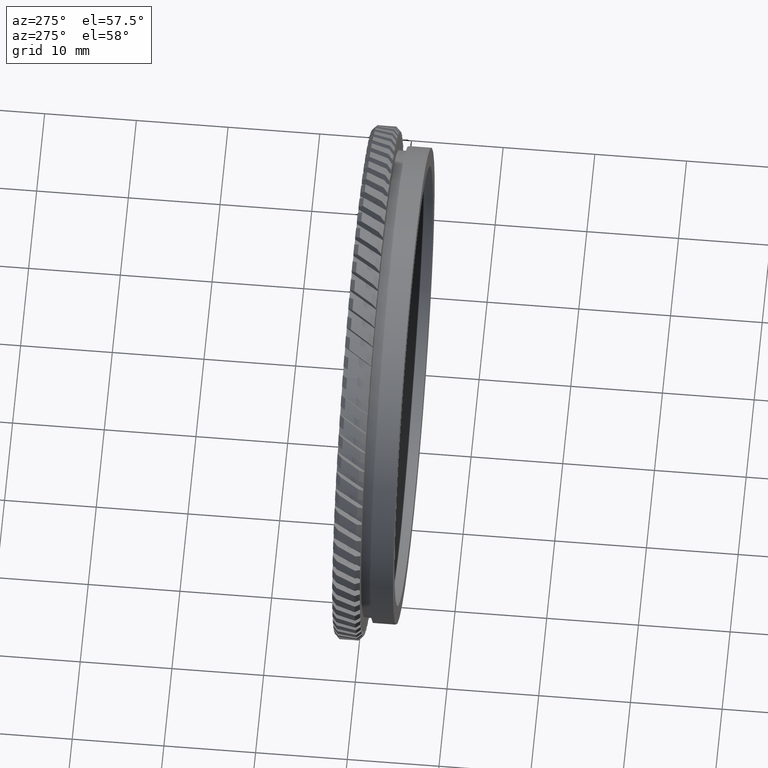
[diagram: clean part render]
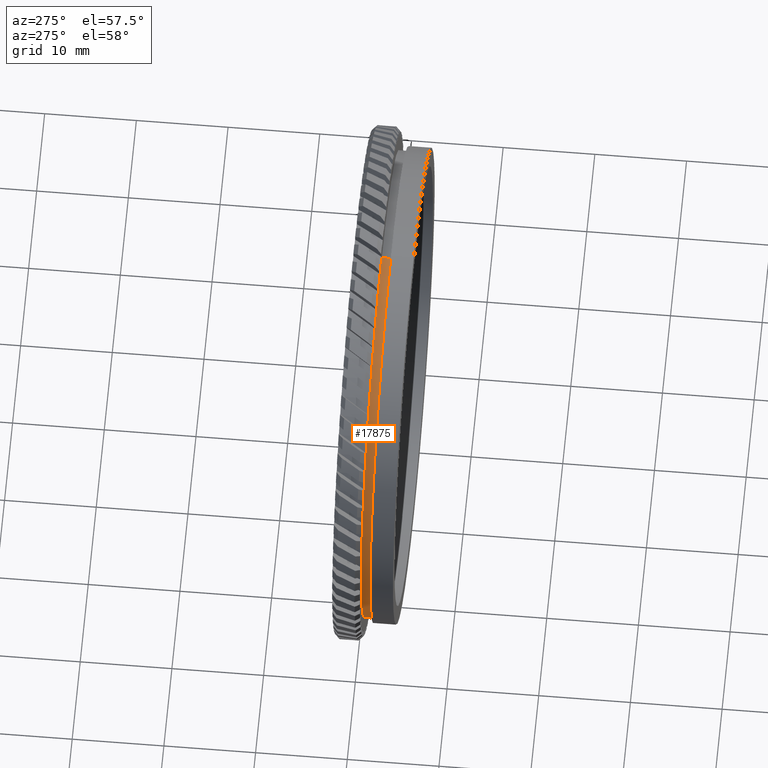
[diagram: same view with one face highlighted and labeled with its STEP entity id]
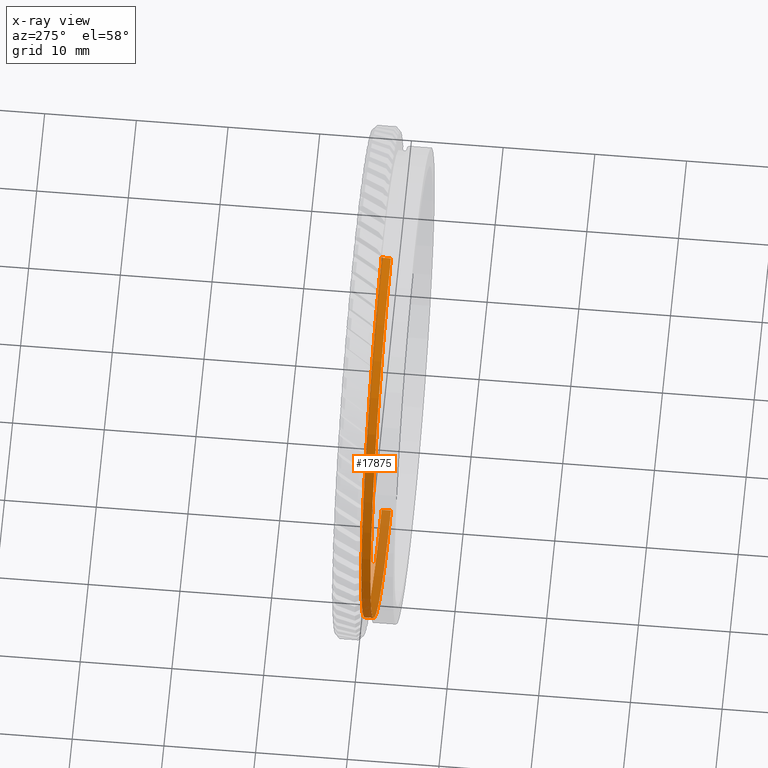
[diagram: x-ray of the same camera — body ghosted, the highlighted face saturated]
A machine part, auxiliary view. The second image highlights one B-rep face of the part: STEP entity #17875.
The next image is the same camera in x-ray: the body ghosted, the highlighted face saturated — about 22% of this face is hidden behind the body in this view.
In plain terms, the highlighted cylindrical surface (partial cylindrical patch) has radius 25.5 mm, axis along (-0, 1, -0).
Its self-contained STEP definition (entity closure, byte-faithful):
#1544 = DIRECTION ( 'NONE',  ( -0.0000000000000000000, 1.000000000000000000, -0.0000000000000000000 ) ) ;
#2074 = CARTESIAN_POINT ( 'NONE',  ( 0.0000000000000000000, 18.87125740523061500, 25.50000000000000400 ) ) ;
#2960 = EDGE_LOOP ( 'NONE', ( #7643, #3539, #10129, #19889 ) ) ;
#3127 = CARTESIAN_POINT ( 'NONE',  ( 0.0000000000000000000, 17.87125740523061500, 25.50000000000000000 ) ) ;
#3332 = VECTOR ( 'NONE', #14897, 1000.000000000000000 ) ;
#3539 = ORIENTED_EDGE ( 'NONE', *, *, #4991, .T. ) ;
#3823 = EDGE_CURVE ( 'NONE', #10670, #5330, #16551, .T. ) ;
#4991 = EDGE_CURVE ( 'NONE', #5507, #13038, #10462, .T. ) ;
#5046 = CYLINDRICAL_SURFACE ( 'NONE', #9074, 25.50000000000000400 ) ;
#5330 = VERTEX_POINT ( 'NONE', #2074 ) ;
#5507 = VERTEX_POINT ( 'NONE', #16194 ) ;
#5612 = CARTESIAN_POINT ( 'NONE',  ( 0.0000000000000000000, 66.62876213592232900, 25.50000000000000400 ) ) ;
#6295 = LINE ( 'NONE', #5612, #3332 ) ;
#6470 = DIRECTION ( 'NONE',  ( 0.0000000000000000000, 0.0000000000000000000, 1.000000000000000000 ) ) ;
#6947 = CARTESIAN_POINT ( 'NONE',  ( 0.0000000000000000000, 18.87125740523061500, 0.0000000000000000000 ) ) ;
#7643 = ORIENTED_EDGE ( 'NONE', *, *, #14650, .F. ) ;
#8038 = DIRECTION ( 'NONE',  ( -0.0000000000000000000, 1.000000000000000000, -0.0000000000000000000 ) ) ;
#8487 = FACE_OUTER_BOUND ( 'NONE', #2960, .T. ) ;
#8748 = CARTESIAN_POINT ( 'NONE',  ( 0.0000000000000000000, 17.87125740523061500, 0.0000000000000000000 ) ) ;
#9067 = AXIS2_PLACEMENT_3D ( 'NONE', #6947, #16004, #16206 ) ;
#9074 = AXIS2_PLACEMENT_3D ( 'NONE', #15796, #8038, #6470 ) ;
#10129 = ORIENTED_EDGE ( 'NONE', *, *, #18933, .T. ) ;
#10462 = CIRCLE ( 'NONE', #11679, 25.50000000000000000 ) ;
#10670 = VERTEX_POINT ( 'NONE', #12940 ) ;
#11679 = AXIS2_PLACEMENT_3D ( 'NONE', #8748, #16633, #19609 ) ;
#12706 = VECTOR ( 'NONE', #1544, 1000.000000000000000 ) ;
#12940 = CARTESIAN_POINT ( 'NONE',  ( 3.122849337825751800E-015, 18.87125740523061500, -25.50000000000000700 ) ) ;
#13038 = VERTEX_POINT ( 'NONE', #3127 ) ;
#14100 = CARTESIAN_POINT ( 'NONE',  ( 3.122849337825751000E-015, 66.62876213592232900, -25.50000000000000400 ) ) ;
#14650 = EDGE_CURVE ( 'NONE', #5507, #10670, #16856, .T. ) ;
#14897 = DIRECTION ( 'NONE',  ( -0.0000000000000000000, 1.000000000000000000, -0.0000000000000000000 ) ) ;
#15796 = CARTESIAN_POINT ( 'NONE',  ( 0.0000000000000000000, 66.62876213592232900, 0.0000000000000000000 ) ) ;
#16004 = DIRECTION ( 'NONE',  ( -0.0000000000000000000, 1.000000000000000000, -0.0000000000000000000 ) ) ;
#16194 = CARTESIAN_POINT ( 'NONE',  ( 3.122849337825750600E-015, 17.87125740523061500, -25.50000000000000000 ) ) ;
#16206 = DIRECTION ( 'NONE',  ( 0.0000000000000000000, 0.0000000000000000000, 1.000000000000000000 ) ) ;
#16551 = CIRCLE ( 'NONE', #9067, 25.50000000000000400 ) ;
#16633 = DIRECTION ( 'NONE',  ( -0.0000000000000000000, 1.000000000000000000, -0.0000000000000000000 ) ) ;
#16856 = LINE ( 'NONE', #14100, #12706 ) ;
#17875 = ADVANCED_FACE ( 'NONE', ( #8487 ), #5046, .T. ) ;
#18933 = EDGE_CURVE ( 'NONE', #13038, #5330, #6295, .T. ) ;
#19609 = DIRECTION ( 'NONE',  ( 0.0000000000000000000, 0.0000000000000000000, 1.000000000000000000 ) ) ;
#19889 = ORIENTED_EDGE ( 'NONE', *, *, #3823, .F. ) ;